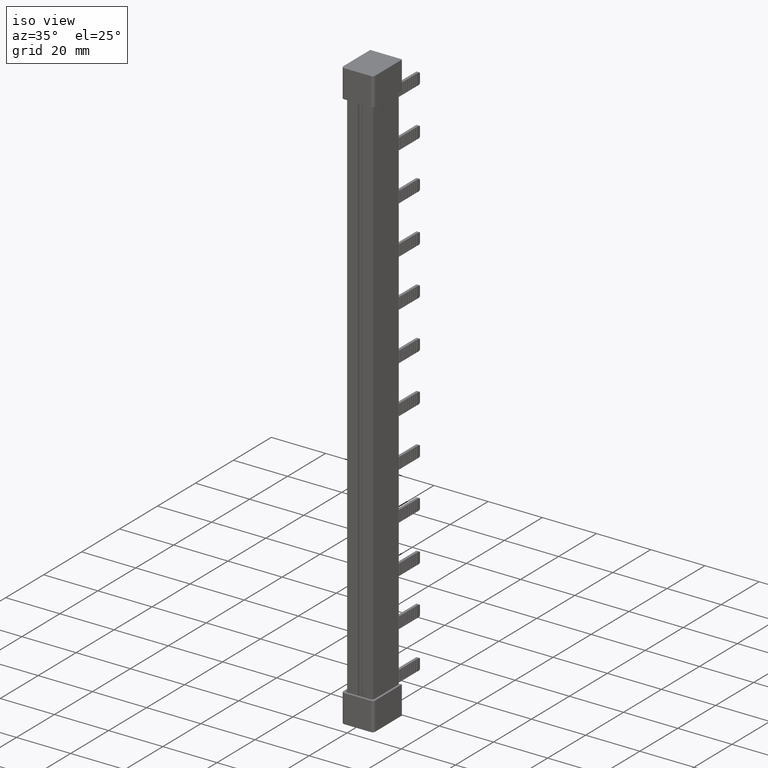
[diagram: clean part render]
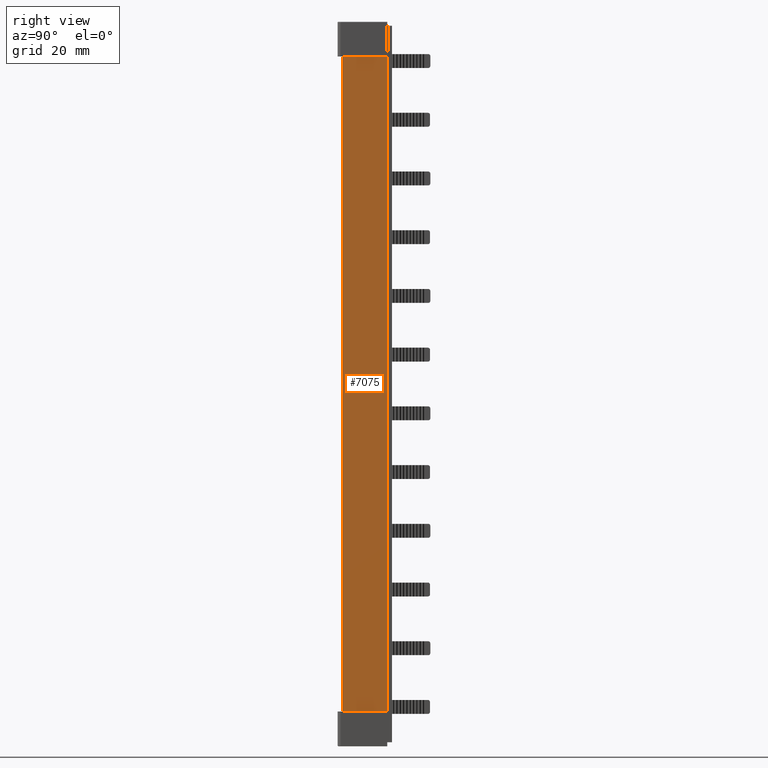
[diagram: tour spotlight — one face highlighted and labeled with its STEP entity id]
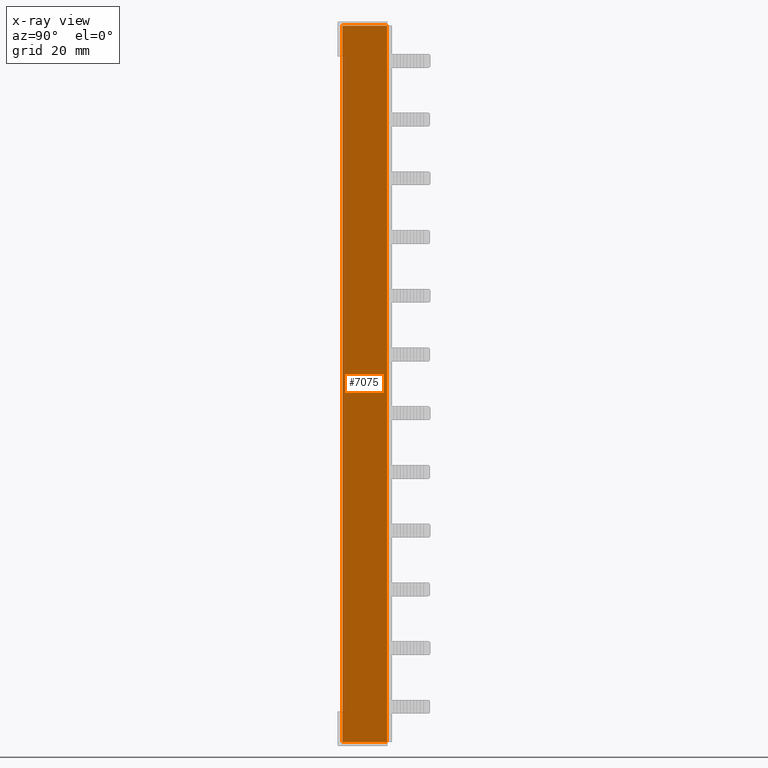
[diagram: x-ray of the same camera — body ghosted, this tour face saturated]
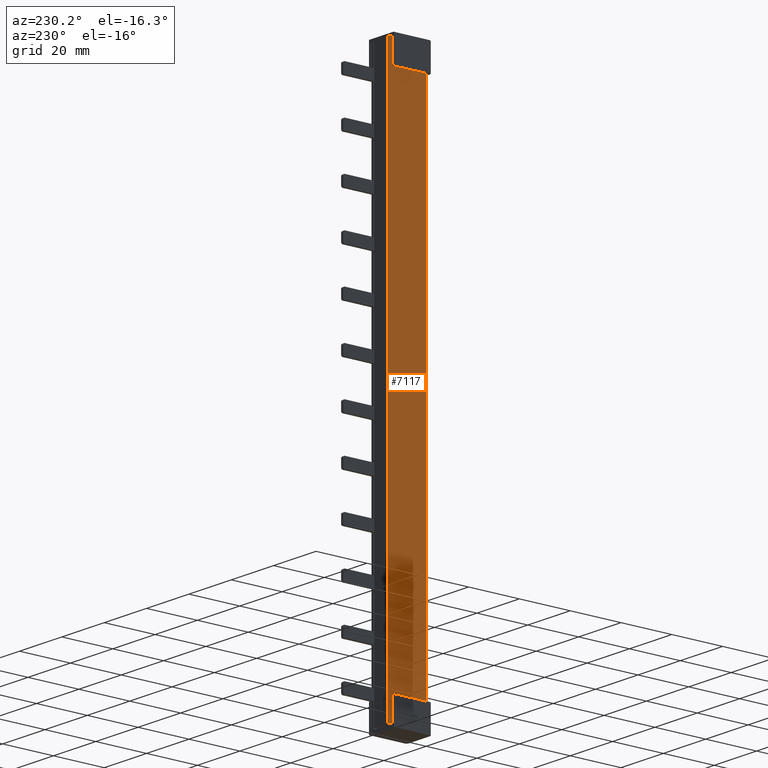
[diagram: tour spotlight — one face highlighted and labeled with its STEP entity id]
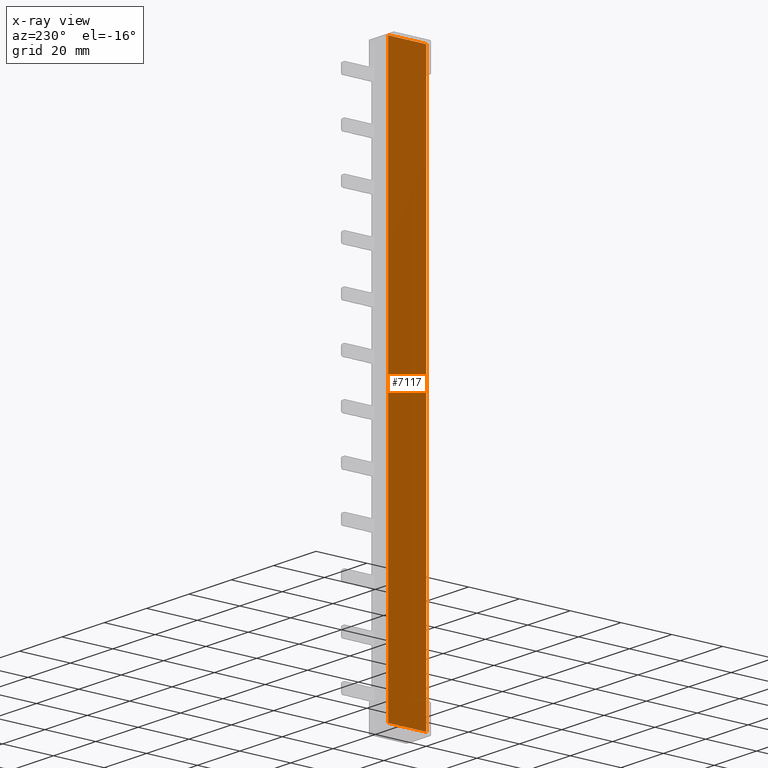
[diagram: x-ray of the same camera — body ghosted, this tour face saturated]
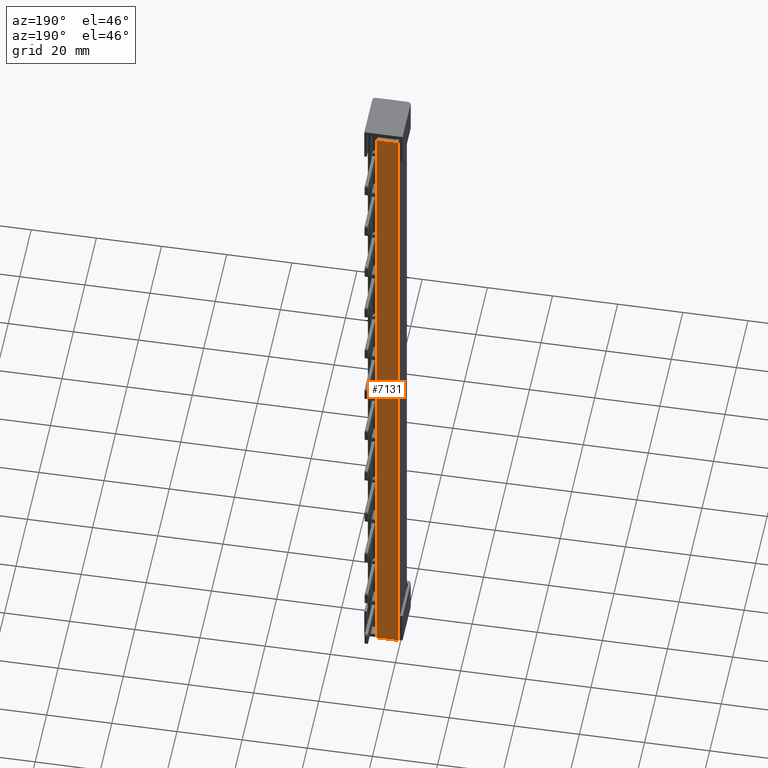
[diagram: tour spotlight — one face highlighted and labeled with its STEP entity id]
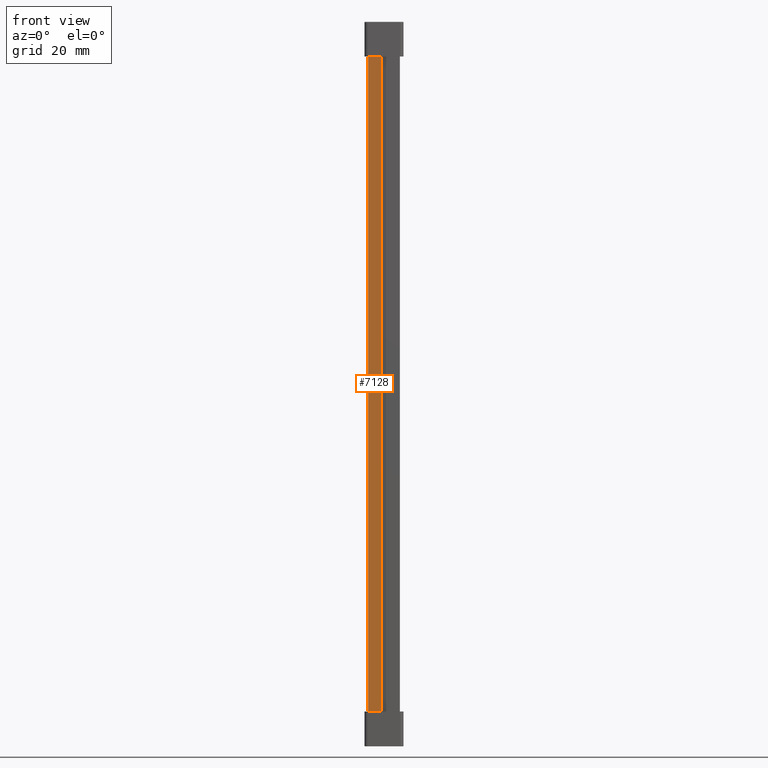
[diagram: tour spotlight — one face highlighted and labeled with its STEP entity id]
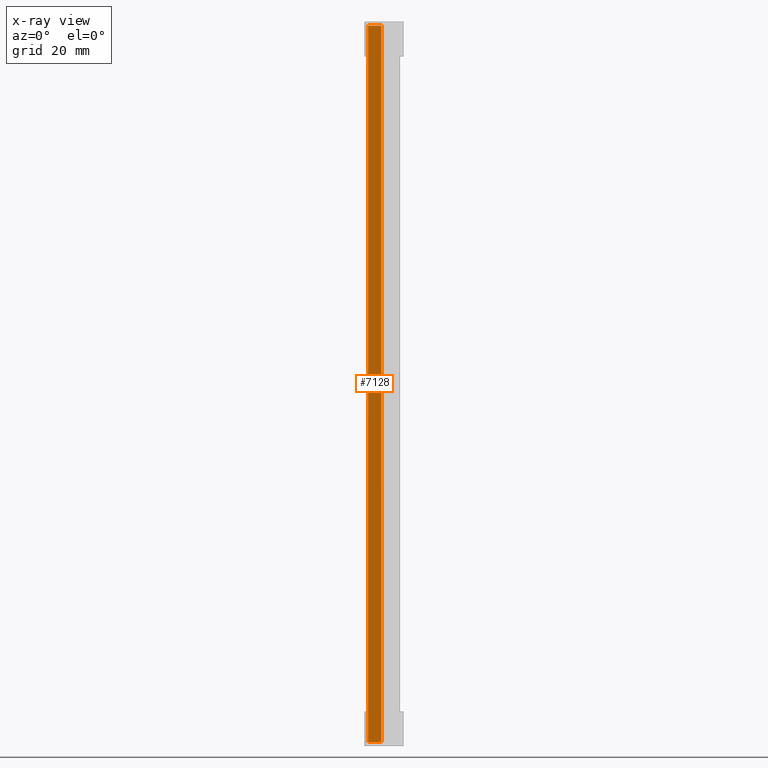
[diagram: x-ray of the same camera — body ghosted, this tour face saturated]
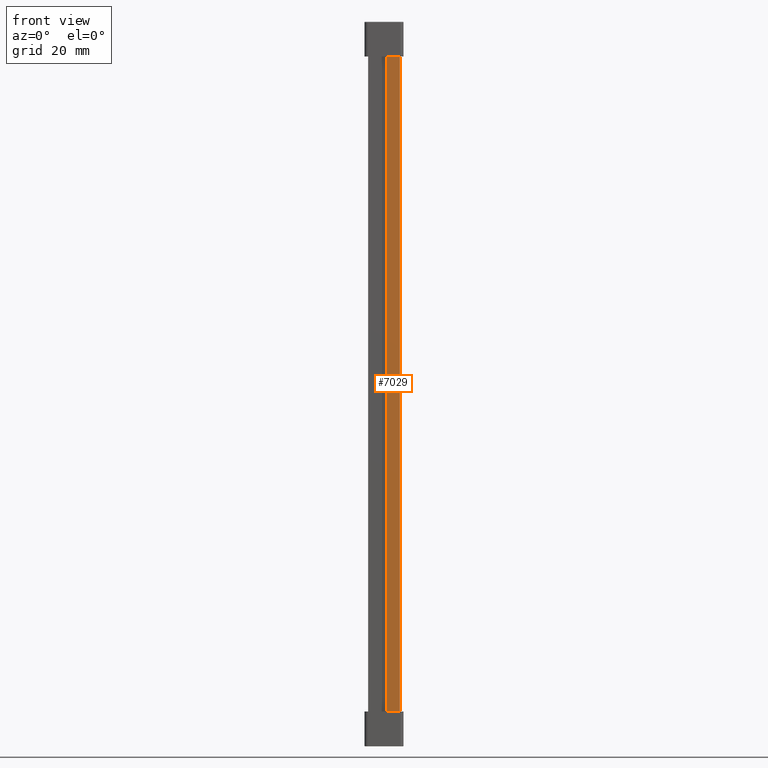
[diagram: tour spotlight — one face highlighted and labeled with its STEP entity id]
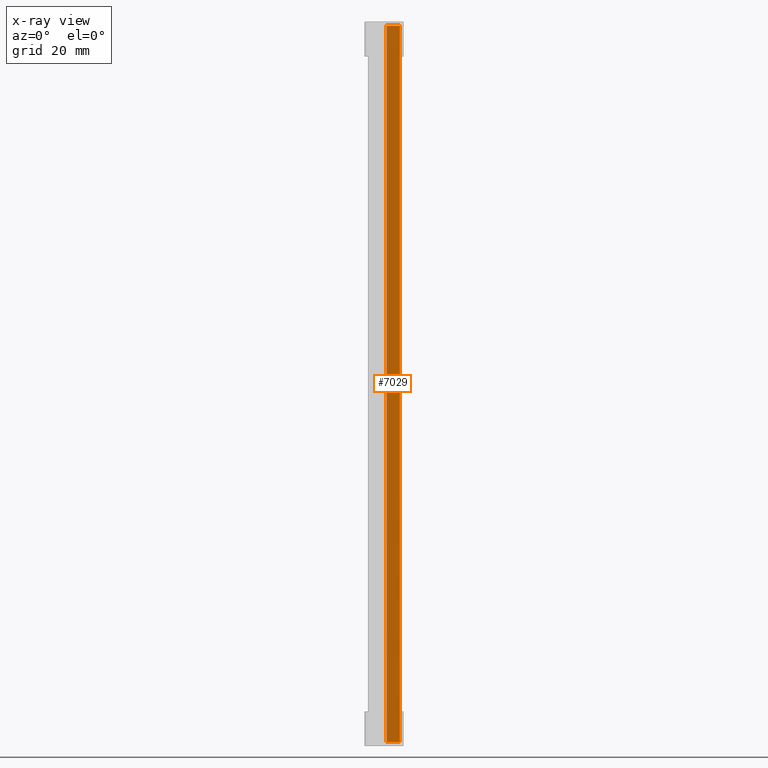
[diagram: x-ray of the same camera — body ghosted, this tour face saturated]
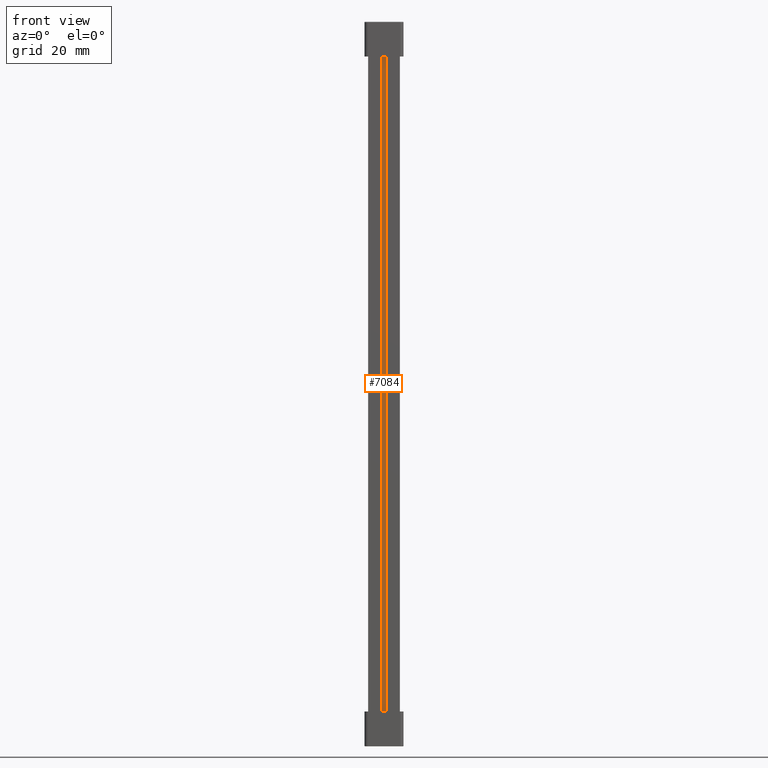
[diagram: tour spotlight — one face highlighted and labeled with its STEP entity id]
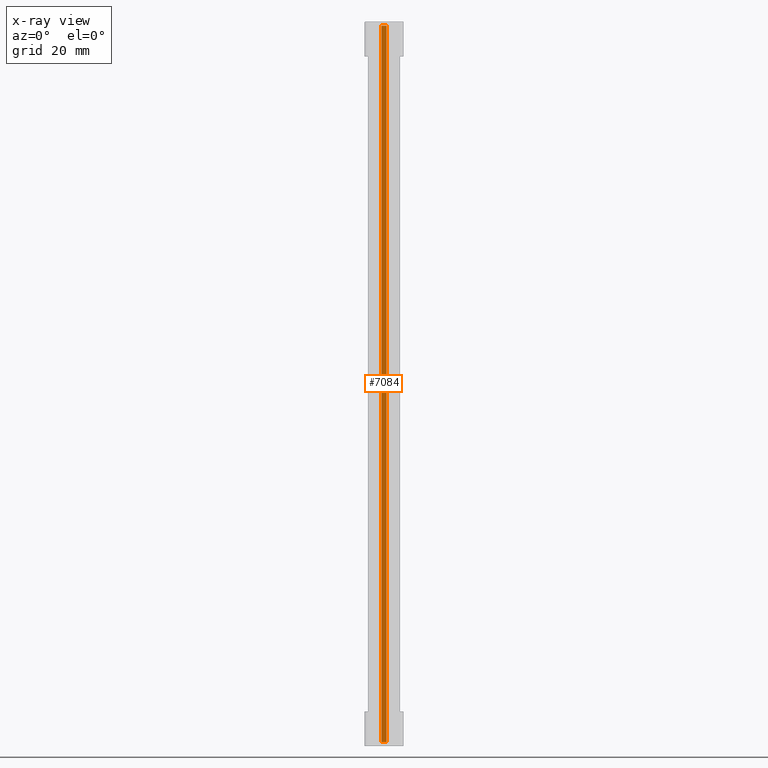
[diagram: x-ray of the same camera — body ghosted, this tour face saturated]
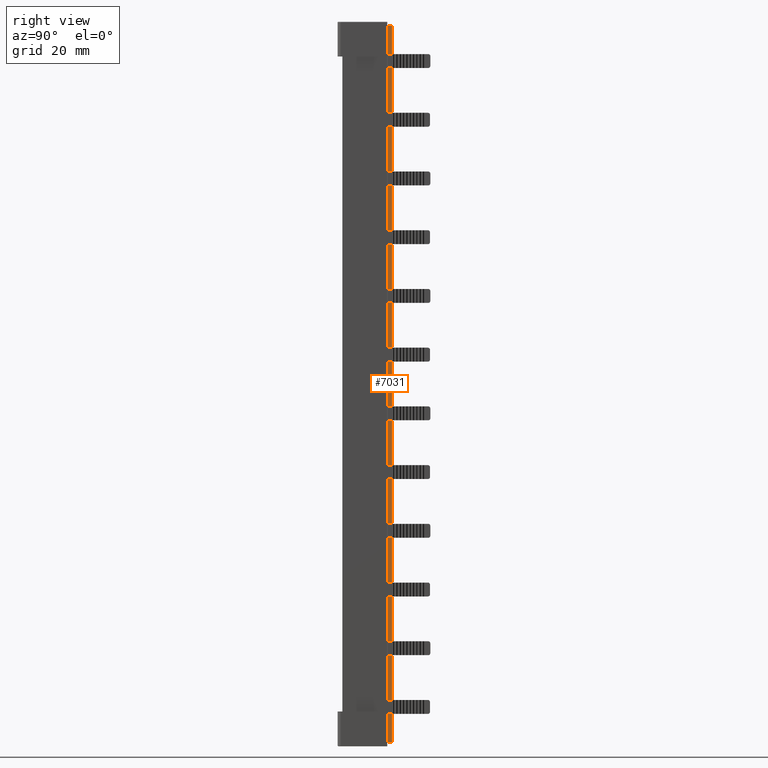
[diagram: tour spotlight — one face highlighted and labeled with its STEP entity id]
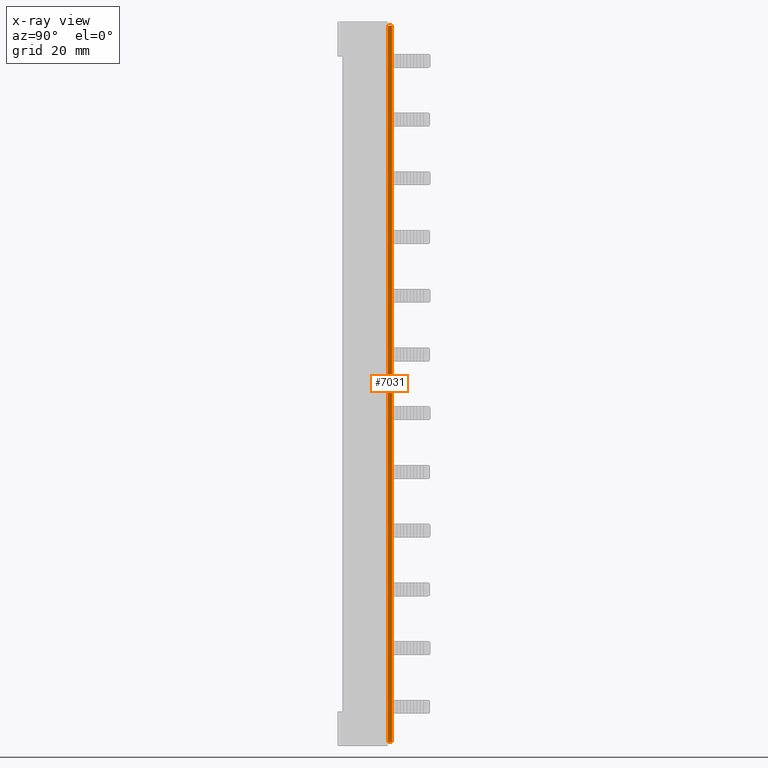
[diagram: x-ray of the same camera — body ghosted, this tour face saturated]
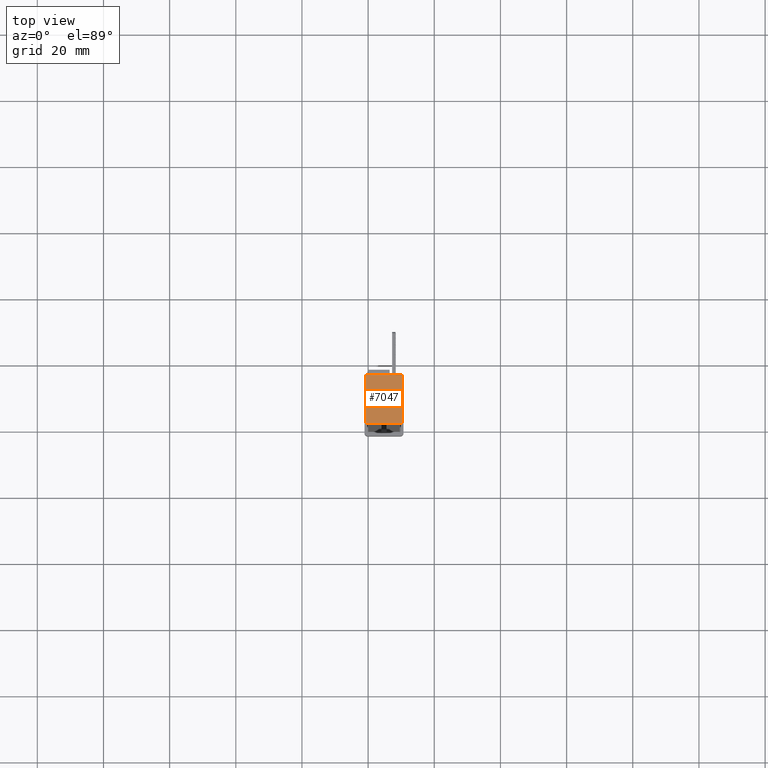
[diagram: tour spotlight — one face highlighted and labeled with its STEP entity id]
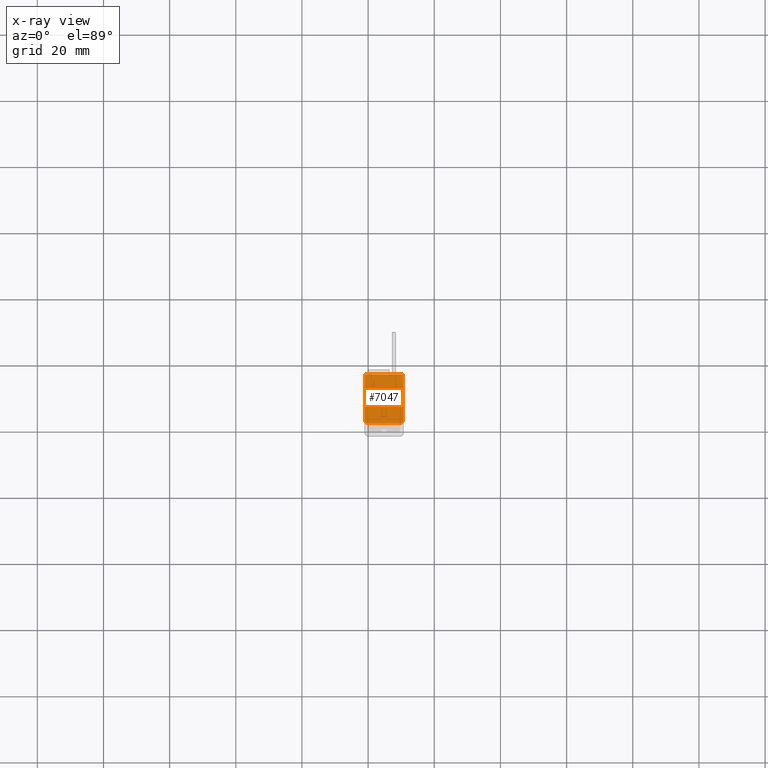
[diagram: x-ray of the same camera — body ghosted, this tour face saturated]
A machine part: a face-by-face anatomy tour. The part has 660 B-rep faces; the first image is the clean iso view, then the 8 largest visible faces are spotlighted one at a time (largest first), each with its STEP entity span.

Face 1 — right view, entity #7075. An x-ray twin of the same camera follows (body ghosted, this face saturated) — the face is partly hidden behind the body. In plain terms, the highlighted planar face has unit normal (-1, 0, 0).
Definition (entity closure, byte-faithful):
#3599 = PLANE ( 'NONE',  #12239 ) ;
#3660 = CARTESIAN_POINT ( 'NONE',  ( 9.599999999999830900, 0.0000000000000000000, 217.7999999999999800 ) ) ;
#3667 = FACE_OUTER_BOUND ( 'NONE', #8654, .T. ) ;
#3673 = DIRECTION ( 'NONE',  ( 0.0000000000000000000, 0.0000000000000000000, 1.000000000000000000 ) ) ;
#3685 = DIRECTION ( 'NONE',  ( -1.000000000000000000, 0.0000000000000000000, 0.0000000000000000000 ) ) ;
#4591 = VECTOR ( 'NONE', #18023, 1000.000000000000000 ) ;
#4974 = VECTOR ( 'NONE', #19788, 1000.000000000000000 ) ;
#4994 = VECTOR ( 'NONE', #19863, 1000.000000000000000 ) ;
#5085 = VECTOR ( 'NONE', #19970, 1000.000000000000000 ) ;
#7075 = ADVANCED_FACE ( 'NONE', ( #3667 ), #3599, .F. ) ;
#7849 = EDGE_CURVE ( 'NONE', #14203, #14118, #12475, .T. ) ;
#7852 = EDGE_CURVE ( 'NONE', #14102, #14119, #12494, .T. ) ;
#7892 = EDGE_CURVE ( 'NONE', #14119, #14118, #18058, .T. ) ;
#8654 = EDGE_LOOP ( 'NONE', ( #12939, #12890, #12903, #12918, #12893, #12952 ) ) ;
#11871 = EDGE_CURVE ( 'NONE', #14102, #14154, #19746, .T. ) ;
#11885 = EDGE_CURVE ( 'NONE', #14154, #14136, #19874, .T. ) ;
#11916 = EDGE_CURVE ( 'NONE', #14136, #14203, #19969, .T. ) ;
#12239 = AXIS2_PLACEMENT_3D ( 'NONE', #3660, #3685, #3673 ) ;
#12475 = B_SPLINE_CURVE_WITH_KNOTS ( 'NONE', 3,
 ( #17911, #17878, #17886, #17902 ),
 .UNSPECIFIED., .F., .F.,
 ( 4, 4 ),
 ( 0.0000000000000000000, 1.270203468420953300E-005 ),
 .UNSPECIFIED. ) ;
#12494 = B_SPLINE_CURVE_WITH_KNOTS ( 'NONE', 3,
 ( #17883, #17890, #17897, #17906 ),
 .UNSPECIFIED., .F., .F.,
 ( 4, 4 ),
 ( 0.0000000000000000000, 1.270203467717655400E-005 ),
 .UNSPECIFIED. ) ;
#12890 = ORIENTED_EDGE ( 'NONE', *, *, #11916, .F. ) ;
#12893 = ORIENTED_EDGE ( 'NONE', *, *, #7852, .T. ) ;
#12903 = ORIENTED_EDGE ( 'NONE', *, *, #11885, .F. ) ;
#12918 = ORIENTED_EDGE ( 'NONE', *, *, #11871, .F. ) ;
#12939 = ORIENTED_EDGE ( 'NONE', *, *, #7849, .F. ) ;
#12952 = ORIENTED_EDGE ( 'NONE', *, *, #7892, .T. ) ;
#14102 = VERTEX_POINT ( 'NONE', #21952 ) ;
#14118 = VERTEX_POINT ( 'NONE', #21991 ) ;
#14119 = VERTEX_POINT ( 'NONE', #22001 ) ;
#14136 = VERTEX_POINT ( 'NONE', #21955 ) ;
#14154 = VERTEX_POINT ( 'NONE', #22006 ) ;
#14203 = VERTEX_POINT ( 'NONE', #22009 ) ;
#17878 = CARTESIAN_POINT ( 'NONE',  ( 9.599999999999830900, 0.008467653322621423000, 1.200000000006616000 ) ) ;
#17883 = CARTESIAN_POINT ( 'NONE',  ( 9.599999999999845100, 0.01270166487699031900, 217.7999999999935000 ) ) ;
#17886 = CARTESIAN_POINT ( 'NONE',  ( 9.599999999999830900, 0.004233506203859551400, 1.200031509152810200 ) ) ;
#17890 = CARTESIAN_POINT ( 'NONE',  ( 9.599999999999830900, 0.008467653317927632500, 217.7999999999933900 ) ) ;
#17897 = CARTESIAN_POINT ( 'NONE',  ( 9.599999999999830900, 0.004233506201509454700, 217.7999684908471900 ) ) ;
#17902 = CARTESIAN_POINT ( 'NONE',  ( 9.599999999999830900, -7.074419175467916400E-015, 1.200096924165450000 ) ) ;
#17906 = CARTESIAN_POINT ( 'NONE',  ( 9.599999999999830900, -1.070649645329435600E-014, 217.7999030758345800 ) ) ;
#17911 = CARTESIAN_POINT ( 'NONE',  ( 9.599999999999830900, 0.01270166488402686000, 1.200000000006612900 ) ) ;
#18023 = DIRECTION ( 'NONE',  ( -0.0000000000000000000, 0.0000000000000000000, -1.000000000000000000 ) ) ;
#18024 = CARTESIAN_POINT ( 'NONE',  ( 9.599999999999830900, 0.0000000000000000000, 217.7999999999999800 ) ) ;
#18058 = LINE ( 'NONE', #18024, #4591 ) ;
#19746 = LINE ( 'NONE', #19797, #4974 ) ;
#19788 = DIRECTION ( 'NONE',  ( 0.0000000000000000000, 1.000000000000000000, -0.0000000000000000000 ) ) ;
#19797 = CARTESIAN_POINT ( 'NONE',  ( 9.599999999999830900, 0.0000000000000000000, 217.7999999999939900 ) ) ;
#19863 = DIRECTION ( 'NONE',  ( -0.0000000000000000000, -0.0000000000000000000, -1.000000000000000000 ) ) ;
#19874 = LINE ( 'NONE', #19880, #4994 ) ;
#19880 = CARTESIAN_POINT ( 'NONE',  ( 9.599999999999830900, 13.49999999999998400, 217.7999999999999800 ) ) ;
#19942 = CARTESIAN_POINT ( 'NONE',  ( 9.599999999999830900, 0.0000000000000000000, 1.200000000006556900 ) ) ;
#19969 = LINE ( 'NONE', #19942, #5085 ) ;
#19970 = DIRECTION ( 'NONE',  ( -0.0000000000000000000, -1.000000000000000000, 0.0000000000000000000 ) ) ;
#21952 = CARTESIAN_POINT ( 'NONE',  ( 9.599999999999845100, 0.01270166487699031900, 217.7999999999935000 ) ) ;
#21955 = CARTESIAN_POINT ( 'NONE',  ( 9.599999999999830900, 13.49999999999998400, 1.200000000006586700 ) ) ;
#21991 = CARTESIAN_POINT ( 'NONE',  ( 9.599999999999830900, -7.074419175467916400E-015, 1.200096924165450000 ) ) ;
#22001 = CARTESIAN_POINT ( 'NONE',  ( 9.599999999999830900, -1.070649645329435600E-014, 217.7999030758345800 ) ) ;
#22006 = CARTESIAN_POINT ( 'NONE',  ( 9.599999999999830900, 13.49999999999998400, 217.7999999999937900 ) ) ;
#22009 = CARTESIAN_POINT ( 'NONE',  ( 9.599999999999830900, 0.01270166488402686000, 1.200000000006612900 ) ) ;

Face 2 — auxiliary view, entity #7117. An x-ray twin of the same camera follows (body ghosted, this face saturated) — the face is partly hidden behind the body. In plain terms, the highlighted planar face has unit normal (1, -0, 0).
Definition (entity closure, byte-faithful):
#3810 = PLANE ( 'NONE',  #12294 ) ;
#3817 = CARTESIAN_POINT ( 'NONE',  ( 0.0000000000000000000, 14.99999999999998600, 217.7999999999999800 ) ) ;
#3837 = FACE_OUTER_BOUND ( 'NONE', #8648, .T. ) ;
#3839 = DIRECTION ( 'NONE',  ( 0.0000000000000000000, 0.0000000000000000000, -1.000000000000000000 ) ) ;
#3845 = DIRECTION ( 'NONE',  ( 1.000000000000000000, -0.0000000000000000000, 0.0000000000000000000 ) ) ;
#4594 = VECTOR ( 'NONE', #18231, 1000.000000000000000 ) ;
#4623 = VECTOR ( 'NONE', #18082, 1000.000000000000000 ) ;
#4627 = VECTOR ( 'NONE', #18212, 1000.000000000000000 ) ;
#4661 = VECTOR ( 'NONE', #18426, 1000.000000000000000 ) ;
#4663 = VECTOR ( 'NONE', #17798, 1000.000000000000000 ) ;
#4716 = VECTOR ( 'NONE', #18444, 1000.000000000000000 ) ;
#7117 = ADVANCED_FACE ( 'NONE', ( #3837 ), #3810, .F. ) ;
#7912 = EDGE_CURVE ( 'NONE', #14105, #14265, #18070, .T. ) ;
#7949 = EDGE_CURVE ( 'NONE', #14196, #14261, #18211, .T. ) ;
#7950 = EDGE_CURVE ( 'NONE', #14165, #14205, #18252, .T. ) ;
#7964 = EDGE_CURVE ( 'NONE', #14196, #14265, #12484, .T. ) ;
#7993 = EDGE_CURVE ( 'NONE', #14199, #14261, #12488, .T. ) ;
#7995 = EDGE_CURVE ( 'NONE', #14205, #14105, #18435, .T. ) ;
#7998 = EDGE_CURVE ( 'NONE', #14165, #14112, #18434, .T. ) ;
#8010 = EDGE_CURVE ( 'NONE', #14199, #14112, #17635, .T. ) ;
#8648 = EDGE_LOOP ( 'NONE', ( #11508, #11500, #11451, #11498, #11503, #11490, #11449, #11494 ) ) ;
#11449 = ORIENTED_EDGE ( 'NONE', *, *, #7912, .F. ) ;
#11451 = ORIENTED_EDGE ( 'NONE', *, *, #8010, .F. ) ;
#11490 = ORIENTED_EDGE ( 'NONE', *, *, #7964, .T. ) ;
#11494 = ORIENTED_EDGE ( 'NONE', *, *, #7995, .F. ) ;
#11498 = ORIENTED_EDGE ( 'NONE', *, *, #7993, .T. ) ;
#11500 = ORIENTED_EDGE ( 'NONE', *, *, #7998, .T. ) ;
#11503 = ORIENTED_EDGE ( 'NONE', *, *, #7949, .F. ) ;
#11508 = ORIENTED_EDGE ( 'NONE', *, *, #7950, .F. ) ;
#12294 = AXIS2_PLACEMENT_3D ( 'NONE', #3817, #3845, #3839 ) ;
#12484 = B_SPLINE_CURVE_WITH_KNOTS ( 'NONE', 3,
 ( #18293, #18279, #18268, #18295 ),
 .UNSPECIFIED., .F., .F.,
 ( 4, 4 ),
 ( 1.568708220773724800E-016, 1.270203567553401900E-005 ),
 .UNSPECIFIED. ) ;
#12488 = B_SPLINE_CURVE_WITH_KNOTS ( 'NONE', 3,
 ( #18366, #18371, #18373, #18393 ),
 .UNSPECIFIED., .F., .F.,
 ( 4, 4 ),
 ( 1.084202172485504300E-019, 1.270203568945261700E-005 ),
 .UNSPECIFIED. ) ;
#14105 = VERTEX_POINT ( 'NONE', #21972 ) ;
#14112 = VERTEX_POINT ( 'NONE', #21988 ) ;
#14165 = VERTEX_POINT ( 'NONE', #22022 ) ;
#14196 = VERTEX_POINT ( 'NONE', #22037 ) ;
#14199 = VERTEX_POINT ( 'NONE', #22007 ) ;
#14205 = VERTEX_POINT ( 'NONE', #22060 ) ;
#14261 = VERTEX_POINT ( 'NONE', #22084 ) ;
#14265 = VERTEX_POINT ( 'NONE', #22083 ) ;
#17635 = LINE ( 'NONE', #17725, #4663 ) ;
#17725 = CARTESIAN_POINT ( 'NONE',  ( 0.0000000000000000000, 14.99999999999998600, 1.199999999999978900 ) ) ;
#17798 = DIRECTION ( 'NONE',  ( 0.0000000000000000000, 1.000000000000000000, 0.0000000000000000000 ) ) ;
#18070 = LINE ( 'NONE', #18099, #4623 ) ;
#18082 = DIRECTION ( 'NONE',  ( -0.0000000000000000000, -1.000000000000000000, -0.0000000000000000000 ) ) ;
#18099 = CARTESIAN_POINT ( 'NONE',  ( 0.0000000000000000000, 14.99999999999998600, 217.7999999999999800 ) ) ;
#18211 = LINE ( 'NONE', #18244, #4627 ) ;
#18212 = DIRECTION ( 'NONE',  ( 0.0000000000000000000, 0.0000000000000000000, -1.000000000000000000 ) ) ;
#18231 = DIRECTION ( 'NONE',  ( -0.0000000000000000000, -0.0000000000000000000, 1.000000000000000000 ) ) ;
#18244 = CARTESIAN_POINT ( 'NONE',  ( 0.0000000000000000000, -3.301178774783863900E-012, 217.7999999999999800 ) ) ;
#18252 = LINE ( 'NONE', #18254, #4594 ) ;
#18254 = CARTESIAN_POINT ( 'NONE',  ( 0.0000000000000000000, 14.99999999999998600, 217.7999999999999800 ) ) ;
#18268 = CARTESIAN_POINT ( 'NONE',  ( 3.888690407234161800E-027, 0.008467653977362574900, 217.8000000000000400 ) ) ;
#18279 = CARTESIAN_POINT ( 'NONE',  ( 3.252606517516262600E-016, 0.004233506528130560700, 217.7999684908489800 ) ) ;
#18293 = CARTESIAN_POINT ( 'NONE',  ( 2.987457831587228100E-027, -4.682614972856269400E-012, 217.7999030756656700 ) ) ;
#18295 = CARTESIAN_POINT ( 'NONE',  ( 1.555476162885155800E-027, 0.01270166586920734100, 217.8000000000000700 ) ) ;
#18366 = CARTESIAN_POINT ( 'NONE',  ( -3.385421283585987600E-015, 0.01270166588209198900, 1.199999999999988400 ) ) ;
#18371 = CARTESIAN_POINT ( 'NONE',  ( -2.439454888092405200E-016, 0.008467653982111252000, 1.199999999999992600 ) ) ;
#18373 = CARTESIAN_POINT ( 'NONE',  ( -1.355252715607017800E-017, 0.004233506524741682100, 1.200031509151098900 ) ) ;
#18393 = CARTESIAN_POINT ( 'NONE',  ( -2.629670657931185800E-009, -1.650670702554868400E-012, 1.200096924887896800 ) ) ;
#18413 = CARTESIAN_POINT ( 'NONE',  ( 0.0000000000000000000, 14.99999999999998600, 217.7999999999999800 ) ) ;
#18426 = DIRECTION ( 'NONE',  ( 0.0000000000000000000, -1.000000000000000000, -0.0000000000000000000 ) ) ;
#18434 = LINE ( 'NONE', #18445, #4661 ) ;
#18435 = LINE ( 'NONE', #18413, #4716 ) ;
#18444 = DIRECTION ( 'NONE',  ( 0.0000000000000000000, -1.000000000000000000, -0.0000000000000000000 ) ) ;
#18445 = CARTESIAN_POINT ( 'NONE',  ( 0.0000000000000000000, 14.99999999999998600, 1.200000000000000000 ) ) ;
#21972 = CARTESIAN_POINT ( 'NONE',  ( 0.0000000000000000000, 13.60000000000009400, 217.7999999999999800 ) ) ;
#21988 = CARTESIAN_POINT ( 'NONE',  ( 0.0000000000000000000, 13.60000000000009400, 1.199999999999994400 ) ) ;
#22007 = CARTESIAN_POINT ( 'NONE',  ( -3.385421283585987600E-015, 0.01270166588209198900, 1.199999999999988400 ) ) ;
#22022 = CARTESIAN_POINT ( 'NONE',  ( 0.0000000000000000000, 14.99999999999998600, 1.200000000000003100 ) ) ;
#22037 = CARTESIAN_POINT ( 'NONE',  ( 2.987457831587228100E-027, -4.682614972856269400E-012, 217.7999030756656700 ) ) ;
#22060 = CARTESIAN_POINT ( 'NONE',  ( 0.0000000000000000000, 14.99999999999998600, 217.7999999999999800 ) ) ;
#22083 = CARTESIAN_POINT ( 'NONE',  ( 1.555476162885155800E-027, 0.01270166586920734100, 217.8000000000000700 ) ) ;
#22084 = CARTESIAN_POINT ( 'NONE',  ( -2.629670657931185800E-009, -1.650670702554868400E-012, 1.200096924887896800 ) ) ;

Face 3 — auxiliary view, entity #7131. In plain terms, the highlighted planar face has unit normal (0, -1, 0).
Definition (entity closure, byte-faithful):
#3937 = FACE_OUTER_BOUND ( 'NONE', #8646, .T. ) ;
#3942 = PLANE ( 'NONE',  #12263 ) ;
#3943 = CARTESIAN_POINT ( 'NONE',  ( 6.499999999999950300, 14.99999999999998600, 217.7999999999999800 ) ) ;
#3957 = DIRECTION ( 'NONE',  ( 0.0000000000000000000, -1.000000000000000000, 0.0000000000000000000 ) ) ;
#3959 = DIRECTION ( 'NONE',  ( 0.0000000000000000000, -0.0000000000000000000, -1.000000000000000000 ) ) ;
#4594 = VECTOR ( 'NONE', #18231, 1000.000000000000000 ) ;
#4639 = VECTOR ( 'NONE', #18175, 1000.000000000000000 ) ;
#4651 = VECTOR ( 'NONE', #18238, 1000.000000000000000 ) ;
#4676 = VECTOR ( 'NONE', #18269, 1000.000000000000000 ) ;
#7131 = ADVANCED_FACE ( 'NONE', ( #3937 ), #3942, .F. ) ;
#7934 = EDGE_CURVE ( 'NONE', #14180, #14205, #18188, .T. ) ;
#7948 = EDGE_CURVE ( 'NONE', #14232, #14180, #18246, .T. ) ;
#7950 = EDGE_CURVE ( 'NONE', #14165, #14205, #18252, .T. ) ;
#7966 = EDGE_CURVE ( 'NONE', #14165, #14232, #18266, .T. ) ;
#8646 = EDGE_LOOP ( 'NONE', ( #11470, #11499, #11448, #11486 ) ) ;
#11448 = ORIENTED_EDGE ( 'NONE', *, *, #7950, .T. ) ;
#11470 = ORIENTED_EDGE ( 'NONE', *, *, #7948, .F. ) ;
#11486 = ORIENTED_EDGE ( 'NONE', *, *, #7934, .F. ) ;
#11499 = ORIENTED_EDGE ( 'NONE', *, *, #7966, .F. ) ;
#12263 = AXIS2_PLACEMENT_3D ( 'NONE', #3943, #3957, #3959 ) ;
#14165 = VERTEX_POINT ( 'NONE', #22022 ) ;
#14180 = VERTEX_POINT ( 'NONE', #22016 ) ;
#14205 = VERTEX_POINT ( 'NONE', #22060 ) ;
#14232 = VERTEX_POINT ( 'NONE', #22048 ) ;
#18175 = DIRECTION ( 'NONE',  ( -1.000000000000000000, -0.0000000000000000000, -0.0000000000000000000 ) ) ;
#18188 = LINE ( 'NONE', #18208, #4639 ) ;
#18208 = CARTESIAN_POINT ( 'NONE',  ( 6.499999999999950300, 14.99999999999998600, 217.7999999999999800 ) ) ;
#18231 = DIRECTION ( 'NONE',  ( -0.0000000000000000000, -0.0000000000000000000, 1.000000000000000000 ) ) ;
#18237 = CARTESIAN_POINT ( 'NONE',  ( 6.499999999999950300, 14.99999999999998600, 217.7999999999999800 ) ) ;
#18238 = DIRECTION ( 'NONE',  ( -0.0000000000000000000, 0.0000000000000000000, 1.000000000000000000 ) ) ;
#18246 = LINE ( 'NONE', #18237, #4651 ) ;
#18252 = LINE ( 'NONE', #18254, #4594 ) ;
#18254 = CARTESIAN_POINT ( 'NONE',  ( 0.0000000000000000000, 14.99999999999998600, 217.7999999999999800 ) ) ;
#18266 = LINE ( 'NONE', #18267, #4676 ) ;
#18267 = CARTESIAN_POINT ( 'NONE',  ( 6.499999999999950300, 14.99999999999998600, 1.200000000000006600 ) ) ;
#18269 = DIRECTION ( 'NONE',  ( 1.000000000000000000, 0.0000000000000000000, 0.0000000000000000000 ) ) ;
#22016 = CARTESIAN_POINT ( 'NONE',  ( 6.499999999999950300, 14.99999999999998600, 217.7999999999999300 ) ) ;
#22022 = CARTESIAN_POINT ( 'NONE',  ( 0.0000000000000000000, 14.99999999999998600, 1.200000000000003100 ) ) ;
#22048 = CARTESIAN_POINT ( 'NONE',  ( 6.499999999999950300, 14.99999999999998600, 1.200000000000003100 ) ) ;
#22060 = CARTESIAN_POINT ( 'NONE',  ( 0.0000000000000000000, 14.99999999999998600, 217.7999999999999800 ) ) ;

Face 4 — front view, entity #7128. An x-ray twin of the same camera follows (body ghosted, this face saturated) — the face is partly hidden behind the body. In plain terms, the highlighted planar face has unit normal (0, 1, 0).
Definition (entity closure, byte-faithful):
#3873 = CARTESIAN_POINT ( 'NONE',  ( 0.0000000000000000000, 0.0000000000000000000, 217.7999999999999800 ) ) ;
#3885 = PLANE ( 'NONE',  #12305 ) ;
#3892 = DIRECTION ( 'NONE',  ( 0.0000000000000000000, 1.000000000000000000, 0.0000000000000000000 ) ) ;
#3914 = FACE_OUTER_BOUND ( 'NONE', #8651, .T. ) ;
#3916 = DIRECTION ( 'NONE',  ( 0.0000000000000000000, -0.0000000000000000000, 1.000000000000000000 ) ) ;
#4627 = VECTOR ( 'NONE', #18212, 1000.000000000000000 ) ;
#4629 = VECTOR ( 'NONE', #18138, 1000.000000000000000 ) ;
#4641 = VECTOR ( 'NONE', #18218, 1000.000000000000000 ) ;
#4701 = VECTOR ( 'NONE', #18346, 1000.000000000000000 ) ;
#7128 = ADVANCED_FACE ( 'NONE', ( #3914 ), #3885, .F. ) ;
#7916 = EDGE_CURVE ( 'NONE', #14261, #14194, #12480, .T. ) ;
#7921 = EDGE_CURVE ( 'NONE', #14191, #14210, #18125, .T. ) ;
#7945 = EDGE_CURVE ( 'NONE', #14210, #14244, #18168, .T. ) ;
#7949 = EDGE_CURVE ( 'NONE', #14196, #14261, #18211, .T. ) ;
#7956 = EDGE_CURVE ( 'NONE', #14191, #14196, #12463, .T. ) ;
#7979 = EDGE_CURVE ( 'NONE', #14244, #14194, #18335, .T. ) ;
#8651 = EDGE_LOOP ( 'NONE', ( #11462, #11411, #11505, #11419, #11480, #11452 ) ) ;
#11411 = ORIENTED_EDGE ( 'NONE', *, *, #7979, .F. ) ;
#11419 = ORIENTED_EDGE ( 'NONE', *, *, #7921, .F. ) ;
#11452 = ORIENTED_EDGE ( 'NONE', *, *, #7949, .T. ) ;
#11462 = ORIENTED_EDGE ( 'NONE', *, *, #7916, .T. ) ;
#11480 = ORIENTED_EDGE ( 'NONE', *, *, #7956, .T. ) ;
#11505 = ORIENTED_EDGE ( 'NONE', *, *, #7945, .F. ) ;
#12305 = AXIS2_PLACEMENT_3D ( 'NONE', #3873, #3892, #3916 ) ;
#12463 = B_SPLINE_CURVE_WITH_KNOTS ( 'NONE', 3,
 ( #18233, #18235, #18281, #18264 ),
 .UNSPECIFIED., .F., .F.,
 ( 4, 4 ),
 ( 0.0000000000000000000, 7.180331451170225200E-006 ),
 .UNSPECIFIED. ) ;
#12480 = B_SPLINE_CURVE_WITH_KNOTS ( 'NONE', 3,
 ( #18077, #18092, #18085, #18102 ),
 .UNSPECIFIED., .F., .F.,
 ( 4, 4 ),
 ( 2.621711890751029500E-012, 7.180336612641012400E-006 ),
 .UNSPECIFIED. ) ;
#14191 = VERTEX_POINT ( 'NONE', #22057 ) ;
#14194 = VERTEX_POINT ( 'NONE', #22066 ) ;
#14196 = VERTEX_POINT ( 'NONE', #22037 ) ;
#14210 = VERTEX_POINT ( 'NONE', #22041 ) ;
#14244 = VERTEX_POINT ( 'NONE', #22078 ) ;
#14261 = VERTEX_POINT ( 'NONE', #22084 ) ;
#18077 = CARTESIAN_POINT ( 'NONE',  ( -2.629670657931185800E-009, -1.650670702554868400E-012, 1.200096924887896800 ) ) ;
#18085 = CARTESIAN_POINT ( 'NONE',  ( 0.004786231615850648400, -1.626303258728256700E-016, 1.200000000000868800 ) ) ;
#18092 = CARTESIAN_POINT ( 'NONE',  ( 0.002392565724002343900, -1.626303258728256700E-016, 1.200032227864319800 ) ) ;
#18102 = CARTESIAN_POINT ( 'NONE',  ( 0.007179677153397336300, -1.084202172485504400E-017, 1.200000000000557500 ) ) ;
#18125 = LINE ( 'NONE', #18133, #4629 ) ;
#18133 = CARTESIAN_POINT ( 'NONE',  ( 0.0000000000000000000, 0.0000000000000000000, 217.8000000000000700 ) ) ;
#18138 = DIRECTION ( 'NONE',  ( 1.000000000000000000, 0.0000000000000000000, -0.0000000000000000000 ) ) ;
#18168 = LINE ( 'NONE', #18232, #4641 ) ;
#18211 = LINE ( 'NONE', #18244, #4627 ) ;
#18212 = DIRECTION ( 'NONE',  ( 0.0000000000000000000, 0.0000000000000000000, -1.000000000000000000 ) ) ;
#18218 = DIRECTION ( 'NONE',  ( -0.0000000000000000000, 0.0000000000000000000, -1.000000000000000000 ) ) ;
#18232 = CARTESIAN_POINT ( 'NONE',  ( 4.000000000000447600, 0.0000000000000000000, 217.7999999999999800 ) ) ;
#18233 = CARTESIAN_POINT ( 'NONE',  ( 0.007179677250549570400, 1.745565497701662100E-014, 217.8000000000000700 ) ) ;
#18235 = CARTESIAN_POINT ( 'NONE',  ( 0.004786233432218663600, 8.131516293641283300E-017, 217.8000000000001000 ) ) ;
#18244 = CARTESIAN_POINT ( 'NONE',  ( 0.0000000000000000000, -3.301178774783863900E-012, 217.7999999999999800 ) ) ;
#18264 = CARTESIAN_POINT ( 'NONE',  ( 2.987457831587228100E-027, -4.682614972856269400E-012, 217.7999030756656700 ) ) ;
#18281 = CARTESIAN_POINT ( 'NONE',  ( 0.002392569260052271600, 1.084202172485504400E-016, 217.7999677721838300 ) ) ;
#18335 = LINE ( 'NONE', #18343, #4701 ) ;
#18343 = CARTESIAN_POINT ( 'NONE',  ( 0.0000000000000000000, 0.0000000000000000000, 1.200000000002782200 ) ) ;
#18346 = DIRECTION ( 'NONE',  ( -1.000000000000000000, -0.0000000000000000000, 0.0000000000000000000 ) ) ;
#22037 = CARTESIAN_POINT ( 'NONE',  ( 2.987457831587228100E-027, -4.682614972856269400E-012, 217.7999030756656700 ) ) ;
#22041 = CARTESIAN_POINT ( 'NONE',  ( 4.000000000000447600, 0.0000000000000000000, 217.8000000000000700 ) ) ;
#22057 = CARTESIAN_POINT ( 'NONE',  ( 0.007179677250549570400, 1.745565497701662100E-014, 217.8000000000000700 ) ) ;
#22066 = CARTESIAN_POINT ( 'NONE',  ( 0.007179677153397336300, -1.084202172485504400E-017, 1.200000000000557500 ) ) ;
#22078 = CARTESIAN_POINT ( 'NONE',  ( 4.000000000000447600, 0.0000000000000000000, 1.200000000002777500 ) ) ;
#22084 = CARTESIAN_POINT ( 'NONE',  ( -2.629670657931185800E-009, -1.650670702554868400E-012, 1.200096924887896800 ) ) ;

Face 5 — front view, entity #7029. An x-ray twin of the same camera follows (body ghosted, this face saturated) — the face is partly hidden behind the body. In plain terms, the highlighted planar face has unit normal (0, 1, 0).
Definition (entity closure, byte-faithful):
#3333 = PLANE ( 'NONE',  #12185 ) ;
#3334 = CARTESIAN_POINT ( 'NONE',  ( 5.599999999999383200, 0.0000000000000000000, 217.7999999999999800 ) ) ;
#3335 = DIRECTION ( 'NONE',  ( 0.0000000000000000000, 1.000000000000000000, 0.0000000000000000000 ) ) ;
#3336 = FACE_OUTER_BOUND ( 'NONE', #8644, .T. ) ;
#3380 = DIRECTION ( 'NONE',  ( 0.0000000000000000000, -0.0000000000000000000, 1.000000000000000000 ) ) ;
#4589 = VECTOR ( 'NONE', #18029, 1000.000000000000000 ) ;
#4591 = VECTOR ( 'NONE', #18023, 1000.000000000000000 ) ;
#4621 = VECTOR ( 'NONE', #18127, 1000.000000000000000 ) ;
#4640 = VECTOR ( 'NONE', #18170, 1000.000000000000000 ) ;
#7029 = ADVANCED_FACE ( 'NONE', ( #3336 ), #3333, .F. ) ;
#7892 = EDGE_CURVE ( 'NONE', #14119, #14118, #18058, .T. ) ;
#7900 = EDGE_CURVE ( 'NONE', #14121, #14088, #18059, .T. ) ;
#7918 = EDGE_CURVE ( 'NONE', #14121, #14233, #18157, .T. ) ;
#7930 = EDGE_CURVE ( 'NONE', #14172, #14088, #18122, .T. ) ;
#7967 = EDGE_CURVE ( 'NONE', #14233, #14118, #12469, .T. ) ;
#8003 = EDGE_CURVE ( 'NONE', #14172, #14119, #12491, .T. ) ;
#8644 = EDGE_LOOP ( 'NONE', ( #11336, #11362, #11369, #11356, #11258, #11324 ) ) ;
#11258 = ORIENTED_EDGE ( 'NONE', *, *, #8003, .F. ) ;
#11324 = ORIENTED_EDGE ( 'NONE', *, *, #7930, .T. ) ;
#11336 = ORIENTED_EDGE ( 'NONE', *, *, #7900, .F. ) ;
#11356 = ORIENTED_EDGE ( 'NONE', *, *, #7892, .F. ) ;
#11362 = ORIENTED_EDGE ( 'NONE', *, *, #7918, .T. ) ;
#11369 = ORIENTED_EDGE ( 'NONE', *, *, #7967, .T. ) ;
#12185 = AXIS2_PLACEMENT_3D ( 'NONE', #3334, #3335, #3380 ) ;
#12469 = B_SPLINE_CURVE_WITH_KNOTS ( 'NONE', 3,
 ( #18277, #18278, #18272, #18276 ),
 .UNSPECIFIED., .F., .F.,
 ( 4, 4 ),
 ( 0.0000000000000000000, 7.180330892757493400E-006 ),
 .UNSPECIFIED. ) ;
#12491 = B_SPLINE_CURVE_WITH_KNOTS ( 'NONE', 3,
 ( #18446, #18441, #18418, #18428 ),
 .UNSPECIFIED., .F., .F.,
 ( 4, 4 ),
 ( 0.0000000000000000000, 7.180330981980168900E-006 ),
 .UNSPECIFIED. ) ;
#14088 = VERTEX_POINT ( 'NONE', #21899 ) ;
#14118 = VERTEX_POINT ( 'NONE', #21991 ) ;
#14119 = VERTEX_POINT ( 'NONE', #22001 ) ;
#14121 = VERTEX_POINT ( 'NONE', #21992 ) ;
#14172 = VERTEX_POINT ( 'NONE', #22023 ) ;
#14233 = VERTEX_POINT ( 'NONE', #22108 ) ;
#18023 = DIRECTION ( 'NONE',  ( -0.0000000000000000000, 0.0000000000000000000, -1.000000000000000000 ) ) ;
#18024 = CARTESIAN_POINT ( 'NONE',  ( 9.599999999999830900, 0.0000000000000000000, 217.7999999999999800 ) ) ;
#18025 = CARTESIAN_POINT ( 'NONE',  ( 5.599999999999383200, 0.0000000000000000000, 217.7999999999999800 ) ) ;
#18029 = DIRECTION ( 'NONE',  ( 0.0000000000000000000, -0.0000000000000000000, 1.000000000000000000 ) ) ;
#18058 = LINE ( 'NONE', #18024, #4591 ) ;
#18059 = LINE ( 'NONE', #18025, #4589 ) ;
#18122 = LINE ( 'NONE', #18132, #4640 ) ;
#18127 = DIRECTION ( 'NONE',  ( 1.000000000000000000, -0.0000000000000000000, 6.924738560343257600E-013 ) ) ;
#18132 = CARTESIAN_POINT ( 'NONE',  ( 8.900000000277932700, -5.421010862427522200E-017, 217.7999999999938700 ) ) ;
#18146 = CARTESIAN_POINT ( 'NONE',  ( 8.900000000277932700, 0.0000000000000000000, 1.200000000006161700 ) ) ;
#18157 = LINE ( 'NONE', #18146, #4621 ) ;
#18170 = DIRECTION ( 'NONE',  ( -1.000000000000000000, -0.0000000000000000000, 6.924738560343257600E-013 ) ) ;
#18272 = CARTESIAN_POINT ( 'NONE',  ( 9.597607430920996700, 1.626303258728256700E-016, 1.200032227817873700 ) ) ;
#18276 = CARTESIAN_POINT ( 'NONE',  ( 9.599999999999830900, -7.074419175467916400E-015, 1.200096924165450000 ) ) ;
#18277 = CARTESIAN_POINT ( 'NONE',  ( 9.592820323305373300, -1.832301671500502500E-015, 1.200000000006643300 ) ) ;
#18278 = CARTESIAN_POINT ( 'NONE',  ( 9.595213766936291600, 5.692061405548898300E-016, 1.200000000006648400 ) ) ;
#18418 = CARTESIAN_POINT ( 'NONE',  ( 9.597607430891265800, -1.084202172485504400E-016, 217.7999677721829800 ) ) ;
#18428 = CARTESIAN_POINT ( 'NONE',  ( 9.599999999999830900, -1.070649645329435600E-014, 217.7999030758345800 ) ) ;
#18441 = CARTESIAN_POINT ( 'NONE',  ( 9.595213766876803200, -5.692061405548898300E-016, 217.7999999999941800 ) ) ;
#18446 = CARTESIAN_POINT ( 'NONE',  ( 9.592820323216143300, -3.577867169202164600E-016, 217.7999999999941600 ) ) ;
#21899 = CARTESIAN_POINT ( 'NONE',  ( 5.599999999999383200, -2.409338161078898500E-017, 217.7999999999966900 ) ) ;
#21991 = CARTESIAN_POINT ( 'NONE',  ( 9.599999999999830900, -7.074419175467916400E-015, 1.200096924165450000 ) ) ;
#21992 = CARTESIAN_POINT ( 'NONE',  ( 5.599999999999383200, -6.023345402697246300E-018, 1.200000000003878000 ) ) ;
#22001 = CARTESIAN_POINT ( 'NONE',  ( 9.599999999999830900, -1.070649645329435600E-014, 217.7999030758345800 ) ) ;
#22023 = CARTESIAN_POINT ( 'NONE',  ( 9.592820323216143300, -3.577867169202164600E-016, 217.7999999999941600 ) ) ;
#22108 = CARTESIAN_POINT ( 'NONE',  ( 9.592820323305373300, -1.832301671500502500E-015, 1.200000000006643300 ) ) ;

Face 6 — front view, entity #7084. An x-ray twin of the same camera follows (body ghosted, this face saturated) — the face is partly hidden behind the body. In plain terms, the highlighted planar face has unit normal (0, 1, 0).
Definition (entity closure, byte-faithful):
#3654 = DIRECTION ( 'NONE',  ( 0.0000000000000000000, -0.0000000000000000000, 1.000000000000000000 ) ) ;
#3683 = PLANE ( 'NONE',  #12230 ) ;
#3696 = CARTESIAN_POINT ( 'NONE',  ( 4.000000000000447600, 0.7999999999999396500, 217.7999999999999800 ) ) ;
#3697 = FACE_OUTER_BOUND ( 'NONE', #8621, .T. ) ;
#3698 = DIRECTION ( 'NONE',  ( 0.0000000000000000000, 1.000000000000000000, 0.0000000000000000000 ) ) ;
#4532 = VECTOR ( 'NONE', #18008, 1000.000000000000000 ) ;
#4596 = VECTOR ( 'NONE', #18274, 1000.000000000000000 ) ;
#4664 = VECTOR ( 'NONE', #18124, 1000.000000000000000 ) ;
#4687 = VECTOR ( 'NONE', #18480, 1000.000000000000000 ) ;
#7084 = ADVANCED_FACE ( 'NONE', ( #3697 ), #3683, .F. ) ;
#7876 = EDGE_CURVE ( 'NONE', #14201, #14151, #18009, .T. ) ;
#7962 = EDGE_CURVE ( 'NONE', #14201, #14208, #18292, .T. ) ;
#8011 = EDGE_CURVE ( 'NONE', #14208, #14161, #17841, .T. ) ;
#8024 = EDGE_CURVE ( 'NONE', #14151, #14161, #18474, .T. ) ;
#8621 = EDGE_LOOP ( 'NONE', ( #11360, #11352, #11334, #11354 ) ) ;
#11334 = ORIENTED_EDGE ( 'NONE', *, *, #7962, .T. ) ;
#11352 = ORIENTED_EDGE ( 'NONE', *, *, #7876, .F. ) ;
#11354 = ORIENTED_EDGE ( 'NONE', *, *, #8011, .T. ) ;
#11360 = ORIENTED_EDGE ( 'NONE', *, *, #8024, .F. ) ;
#12230 = AXIS2_PLACEMENT_3D ( 'NONE', #3696, #3698, #3654 ) ;
#14151 = VERTEX_POINT ( 'NONE', #20216 ) ;
#14161 = VERTEX_POINT ( 'NONE', #22014 ) ;
#14201 = VERTEX_POINT ( 'NONE', #22025 ) ;
#14208 = VERTEX_POINT ( 'NONE', #22026 ) ;
#17841 = LINE ( 'NONE', #18123, #4664 ) ;
#18008 = DIRECTION ( 'NONE',  ( -0.0000000000000000000, 0.0000000000000000000, -1.000000000000000000 ) ) ;
#18009 = LINE ( 'NONE', #18013, #4532 ) ;
#18013 = CARTESIAN_POINT ( 'NONE',  ( 5.599999999999383200, 0.7999999999999396500, 217.7999999999999800 ) ) ;
#18123 = CARTESIAN_POINT ( 'NONE',  ( 4.000000000000447600, 0.7999999999999396500, 217.7999999999999800 ) ) ;
#18124 = DIRECTION ( 'NONE',  ( -0.0000000000000000000, -0.0000000000000000000, -1.000000000000000000 ) ) ;
#18273 = CARTESIAN_POINT ( 'NONE',  ( 8.900000000277932700, 0.7999999999999396500, 217.7999999999938700 ) ) ;
#18274 = DIRECTION ( 'NONE',  ( -1.000000000000000000, -0.0000000000000000000, 6.924738560343257600E-013 ) ) ;
#18292 = LINE ( 'NONE', #18273, #4596 ) ;
#18460 = CARTESIAN_POINT ( 'NONE',  ( 4.000000000000447600, 0.7999999999999396500, 1.200000000003892400 ) ) ;
#18474 = LINE ( 'NONE', #18460, #4687 ) ;
#18480 = DIRECTION ( 'NONE',  ( -1.000000000000000000, -0.0000000000000000000, 0.0000000000000000000 ) ) ;
#20216 = CARTESIAN_POINT ( 'NONE',  ( 5.599999999999383200, 0.7999999999999396500, 1.200000000003892400 ) ) ;
#22014 = CARTESIAN_POINT ( 'NONE',  ( 4.000000000000447600, 0.7999999999999396500, 1.200000000003147700 ) ) ;
#22025 = CARTESIAN_POINT ( 'NONE',  ( 5.599999999999383200, 0.7999999999999396500, 217.7999999999962600 ) ) ;
#22026 = CARTESIAN_POINT ( 'NONE',  ( 4.000000000000447600, 0.7999999999999396500, 217.7999999999990700 ) ) ;

Face 7 — right view, entity #7031. An x-ray twin of the same camera follows (body ghosted, this face saturated) — the face is partly hidden behind the body. In plain terms, the highlighted planar face has unit normal (-1, 0, 0).
Definition (entity closure, byte-faithful):
#3388 = DIRECTION ( 'NONE',  ( 0.0000000000000000000, 0.0000000000000000000, 1.000000000000000000 ) ) ;
#3392 = CARTESIAN_POINT ( 'NONE',  ( 6.499999999999950300, 13.79999999999995100, 217.7999999999999800 ) ) ;
#3405 = FACE_OUTER_BOUND ( 'NONE', #8642, .T. ) ;
#3431 = DIRECTION ( 'NONE',  ( -1.000000000000000000, 0.0000000000000000000, 0.0000000000000000000 ) ) ;
#3433 = PLANE ( 'NONE',  #12153 ) ;
#4602 = VECTOR ( 'NONE', #18108, 1000.000000000000000 ) ;
#4605 = VECTOR ( 'NONE', #18109, 1000.000000000000000 ) ;
#4651 = VECTOR ( 'NONE', #18238, 1000.000000000000000 ) ;
#4653 = VECTOR ( 'NONE', #18185, 1000.000000000000000 ) ;
#7031 = ADVANCED_FACE ( 'NONE', ( #3405 ), #3433, .F. ) ;
#7911 = EDGE_CURVE ( 'NONE', #14249, #14180, #18088, .T. ) ;
#7926 = EDGE_CURVE ( 'NONE', #14232, #14178, #18140, .T. ) ;
#7933 = EDGE_CURVE ( 'NONE', #14178, #14249, #18165, .T. ) ;
#7948 = EDGE_CURVE ( 'NONE', #14232, #14180, #18246, .T. ) ;
#8642 = EDGE_LOOP ( 'NONE', ( #11442, #11392, #11393, #11497 ) ) ;
#11392 = ORIENTED_EDGE ( 'NONE', *, *, #7926, .F. ) ;
#11393 = ORIENTED_EDGE ( 'NONE', *, *, #7948, .T. ) ;
#11442 = ORIENTED_EDGE ( 'NONE', *, *, #7933, .F. ) ;
#11497 = ORIENTED_EDGE ( 'NONE', *, *, #7911, .F. ) ;
#12153 = AXIS2_PLACEMENT_3D ( 'NONE', #3392, #3431, #3388 ) ;
#14178 = VERTEX_POINT ( 'NONE', #22015 ) ;
#14180 = VERTEX_POINT ( 'NONE', #22016 ) ;
#14232 = VERTEX_POINT ( 'NONE', #22048 ) ;
#14249 = VERTEX_POINT ( 'NONE', #22105 ) ;
#18074 = CARTESIAN_POINT ( 'NONE',  ( 6.499999999999950300, 14.99999999999998600, 217.7999999999999800 ) ) ;
#18088 = LINE ( 'NONE', #18074, #4602 ) ;
#18108 = DIRECTION ( 'NONE',  ( -0.0000000000000000000, 1.000000000000000000, 0.0000000000000000000 ) ) ;
#18109 = DIRECTION ( 'NONE',  ( -0.0000000000000000000, -1.000000000000000000, 0.0000000000000000000 ) ) ;
#18114 = CARTESIAN_POINT ( 'NONE',  ( 6.499999999999950300, 13.79999999999995100, 1.200000000000006600 ) ) ;
#18140 = LINE ( 'NONE', #18114, #4605 ) ;
#18165 = LINE ( 'NONE', #18184, #4653 ) ;
#18184 = CARTESIAN_POINT ( 'NONE',  ( 6.499999999999950300, 13.79999999999995100, 217.7999999999999800 ) ) ;
#18185 = DIRECTION ( 'NONE',  ( 0.0000000000000000000, 0.0000000000000000000, 1.000000000000000000 ) ) ;
#18237 = CARTESIAN_POINT ( 'NONE',  ( 6.499999999999950300, 14.99999999999998600, 217.7999999999999800 ) ) ;
#18238 = DIRECTION ( 'NONE',  ( -0.0000000000000000000, 0.0000000000000000000, 1.000000000000000000 ) ) ;
#18246 = LINE ( 'NONE', #18237, #4651 ) ;
#22015 = CARTESIAN_POINT ( 'NONE',  ( 6.499999999999950300, 13.79999999999995100, 1.200000000000003100 ) ) ;
#22016 = CARTESIAN_POINT ( 'NONE',  ( 6.499999999999950300, 14.99999999999998600, 217.7999999999999300 ) ) ;
#22048 = CARTESIAN_POINT ( 'NONE',  ( 6.499999999999950300, 14.99999999999998600, 1.200000000000003100 ) ) ;
#22105 = CARTESIAN_POINT ( 'NONE',  ( 6.499999999999950300, 13.79999999999995100, 217.7999999999998400 ) ) ;

Face 8 — top view, entity #7047. An x-ray twin of the same camera follows (body ghosted, this face saturated) — the face is partly hidden behind the body. In plain terms, the highlighted planar face has unit normal (-0, 0, -1).
Definition (entity closure, byte-faithful):
#3443 = CARTESIAN_POINT ( 'NONE',  ( 9.700000000278780700, -0.3999999999998344900, 218.9999999999932900 ) ) ;
#3446 = DIRECTION ( 'NONE',  ( -6.924738560343257600E-013, 0.0000000000000000000, -1.000000000000000000 ) ) ;
#3448 = DIRECTION ( 'NONE',  ( -1.000000000000000000, 0.0000000000000000000, 6.924738560343257600E-013 ) ) ;
#3466 = PLANE ( 'NONE',  #12232 ) ;
#3486 = FACE_OUTER_BOUND ( 'NONE', #8587, .T. ) ;
#4529 = VECTOR ( 'NONE', #17926, 1000.000000000000000 ) ;
#4985 = VECTOR ( 'NONE', #19719, 1000.000000000000000 ) ;
#5009 = VECTOR ( 'NONE', #19705, 1000.000000000000000 ) ;
#5011 = VECTOR ( 'NONE', #19776, 1000.000000000000000 ) ;
#7047 = ADVANCED_FACE ( 'NONE', ( #3486 ), #3466, .F. ) ;
#7864 = EDGE_CURVE ( 'NONE', #14077, #14098, #17948, .T. ) ;
#8230 = EDGE_CURVE ( 'NONE', #14106, #14043, #16149, .T. ) ;
#8264 = EDGE_CURVE ( 'NONE', #14099, #14049, #16148, .T. ) ;
#8383 = EDGE_CURVE ( 'NONE', #14077, #14099, #19711, .T. ) ;
#8404 = EDGE_CURVE ( 'NONE', #14049, #14106, #19701, .T. ) ;
#8411 = EDGE_CURVE ( 'NONE', #14043, #14098, #19764, .T. ) ;
#8587 = EDGE_LOOP ( 'NONE', ( #12799, #12783, #12813, #12775, #12803, #12771 ) ) ;
#12232 = AXIS2_PLACEMENT_3D ( 'NONE', #3443, #3446, #3448 ) ;
#12771 = ORIENTED_EDGE ( 'NONE', *, *, #8230, .F. ) ;
#12775 = ORIENTED_EDGE ( 'NONE', *, *, #7864, .T. ) ;
#12783 = ORIENTED_EDGE ( 'NONE', *, *, #8264, .F. ) ;
#12799 = ORIENTED_EDGE ( 'NONE', *, *, #8404, .F. ) ;
#12803 = ORIENTED_EDGE ( 'NONE', *, *, #8411, .F. ) ;
#12813 = ORIENTED_EDGE ( 'NONE', *, *, #8383, .F. ) ;
#14043 = VERTEX_POINT ( 'NONE', #21906 ) ;
#14049 = VERTEX_POINT ( 'NONE', #21914 ) ;
#14077 = VERTEX_POINT ( 'NONE', #21935 ) ;
#14098 = VERTEX_POINT ( 'NONE', #21959 ) ;
#14099 = VERTEX_POINT ( 'NONE', #21982 ) ;
#14106 = VERTEX_POINT ( 'NONE', #22000 ) ;
#16148 =( BOUNDED_CURVE ( )  B_SPLINE_CURVE ( 3, ( #19417, #19429, #19394, #19406 ),
 .UNSPECIFIED., .F., .T. ) 
 B_SPLINE_CURVE_WITH_KNOTS ( ( 4, 4 ),
 ( 0.0000000000000000000, 1.000000000000000000 ),
 .UNSPECIFIED. ) 
 CURVE ( )  GEOMETRIC_REPRESENTATION_ITEM ( )  RATIONAL_B_SPLINE_CURVE ( ( 1.000000000000000000, 0.8047378541243646000, 0.8047378541243646000, 1.000000000000000000 ) ) 
 REPRESENTATION_ITEM ( '' )  );
#16149 =( BOUNDED_CURVE ( )  B_SPLINE_CURVE ( 3, ( #19265, #19266, #19252, #19246 ),
 .UNSPECIFIED., .F., .T. ) 
 B_SPLINE_CURVE_WITH_KNOTS ( ( 4, 4 ),
 ( 0.0000000000000000000, 1.000000000000000000 ),
 .UNSPECIFIED. ) 
 CURVE ( )  GEOMETRIC_REPRESENTATION_ITEM ( )  RATIONAL_B_SPLINE_CURVE ( ( 1.000000000000000000, 0.8047378541249943200, 0.8047378541249943200, 1.000000000000000000 ) ) 
 REPRESENTATION_ITEM ( '' )  );
#17926 = DIRECTION ( 'NONE',  ( -1.000000000000000000, -0.0000000000000000000, -0.0000000000000000000 ) ) ;
#17948 = LINE ( 'NONE', #17962, #4529 ) ;
#17962 = CARTESIAN_POINT ( 'NONE',  ( 10.70000000027151700, 13.60000000000009400, 218.9999999999927200 ) ) ;
#19246 = CARTESIAN_POINT ( 'NONE',  ( -0.8999999997213100600, -0.3999999999998366000, 219.0000000000006500 ) ) ;
#19252 = CARTESIAN_POINT ( 'NONE',  ( -0.8999999997212412300, -0.8686291501003738900, 219.0000000000006000 ) ) ;
#19265 = CARTESIAN_POINT ( 'NONE',  ( -0.09999999972178190400, -1.199999999999836800, 219.0000000000000900 ) ) ;
#19266 = CARTESIAN_POINT ( 'NONE',  ( -0.5686291498239107700, -1.199999999998588900, 219.0000000000004300 ) ) ;
#19394 = CARTESIAN_POINT ( 'NONE',  ( 10.16862915038030100, -1.199999999999816500, 218.9999999999929500 ) ) ;
#19406 = CARTESIAN_POINT ( 'NONE',  ( 9.700000000278782500, -1.199999999999830300, 218.9999999999932900 ) ) ;
#19417 = CARTESIAN_POINT ( 'NONE',  ( 10.50000000027873300, -0.3999999999998344900, 218.9999999999927200 ) ) ;
#19429 = CARTESIAN_POINT ( 'NONE',  ( 10.50000000027876500, -0.8686291501013480000, 218.9999999999927800 ) ) ;
#19685 = CARTESIAN_POINT ( 'NONE',  ( 10.50000000027867800, -0.3999999999998344900, 218.9999999999927200 ) ) ;
#19701 = LINE ( 'NONE', #19704, #5009 ) ;
#19704 = CARTESIAN_POINT ( 'NONE',  ( 9.700000000278780700, -1.199999999999835200, 218.9999999999932900 ) ) ;
#19705 = DIRECTION ( 'NONE',  ( -1.000000000000000000, 0.0000000000000000000, 6.924738560343257600E-013 ) ) ;
#19711 = LINE ( 'NONE', #19685, #4985 ) ;
#19719 = DIRECTION ( 'NONE',  ( -0.0000000000000000000, -1.000000000000000000, -0.0000000000000000000 ) ) ;
#19762 = CARTESIAN_POINT ( 'NONE',  ( -0.8999999997212644300, -0.3999999999998344900, 219.0000000000006000 ) ) ;
#19764 = LINE ( 'NONE', #19762, #5011 ) ;
#19776 = DIRECTION ( 'NONE',  ( 0.0000000000000000000, 1.000000000000000000, 0.0000000000000000000 ) ) ;
#21906 = CARTESIAN_POINT ( 'NONE',  ( -0.8999999997213100600, -0.3999999999998366000, 219.0000000000006500 ) ) ;
#21914 = CARTESIAN_POINT ( 'NONE',  ( 9.700000000278782500, -1.199999999999830300, 218.9999999999932900 ) ) ;
#21935 = CARTESIAN_POINT ( 'NONE',  ( 10.50000000027866100, 13.60000000000009400, 218.9999999999927200 ) ) ;
#21959 = CARTESIAN_POINT ( 'NONE',  ( -0.8999999997213272700, 13.60000000000009400, 218.9999999999966700 ) ) ;
#21982 = CARTESIAN_POINT ( 'NONE',  ( 10.50000000027873300, -0.3999999999998344900, 218.9999999999927200 ) ) ;
#22000 = CARTESIAN_POINT ( 'NONE',  ( -0.09999999972178190400, -1.199999999999836800, 219.0000000000000900 ) ) ;